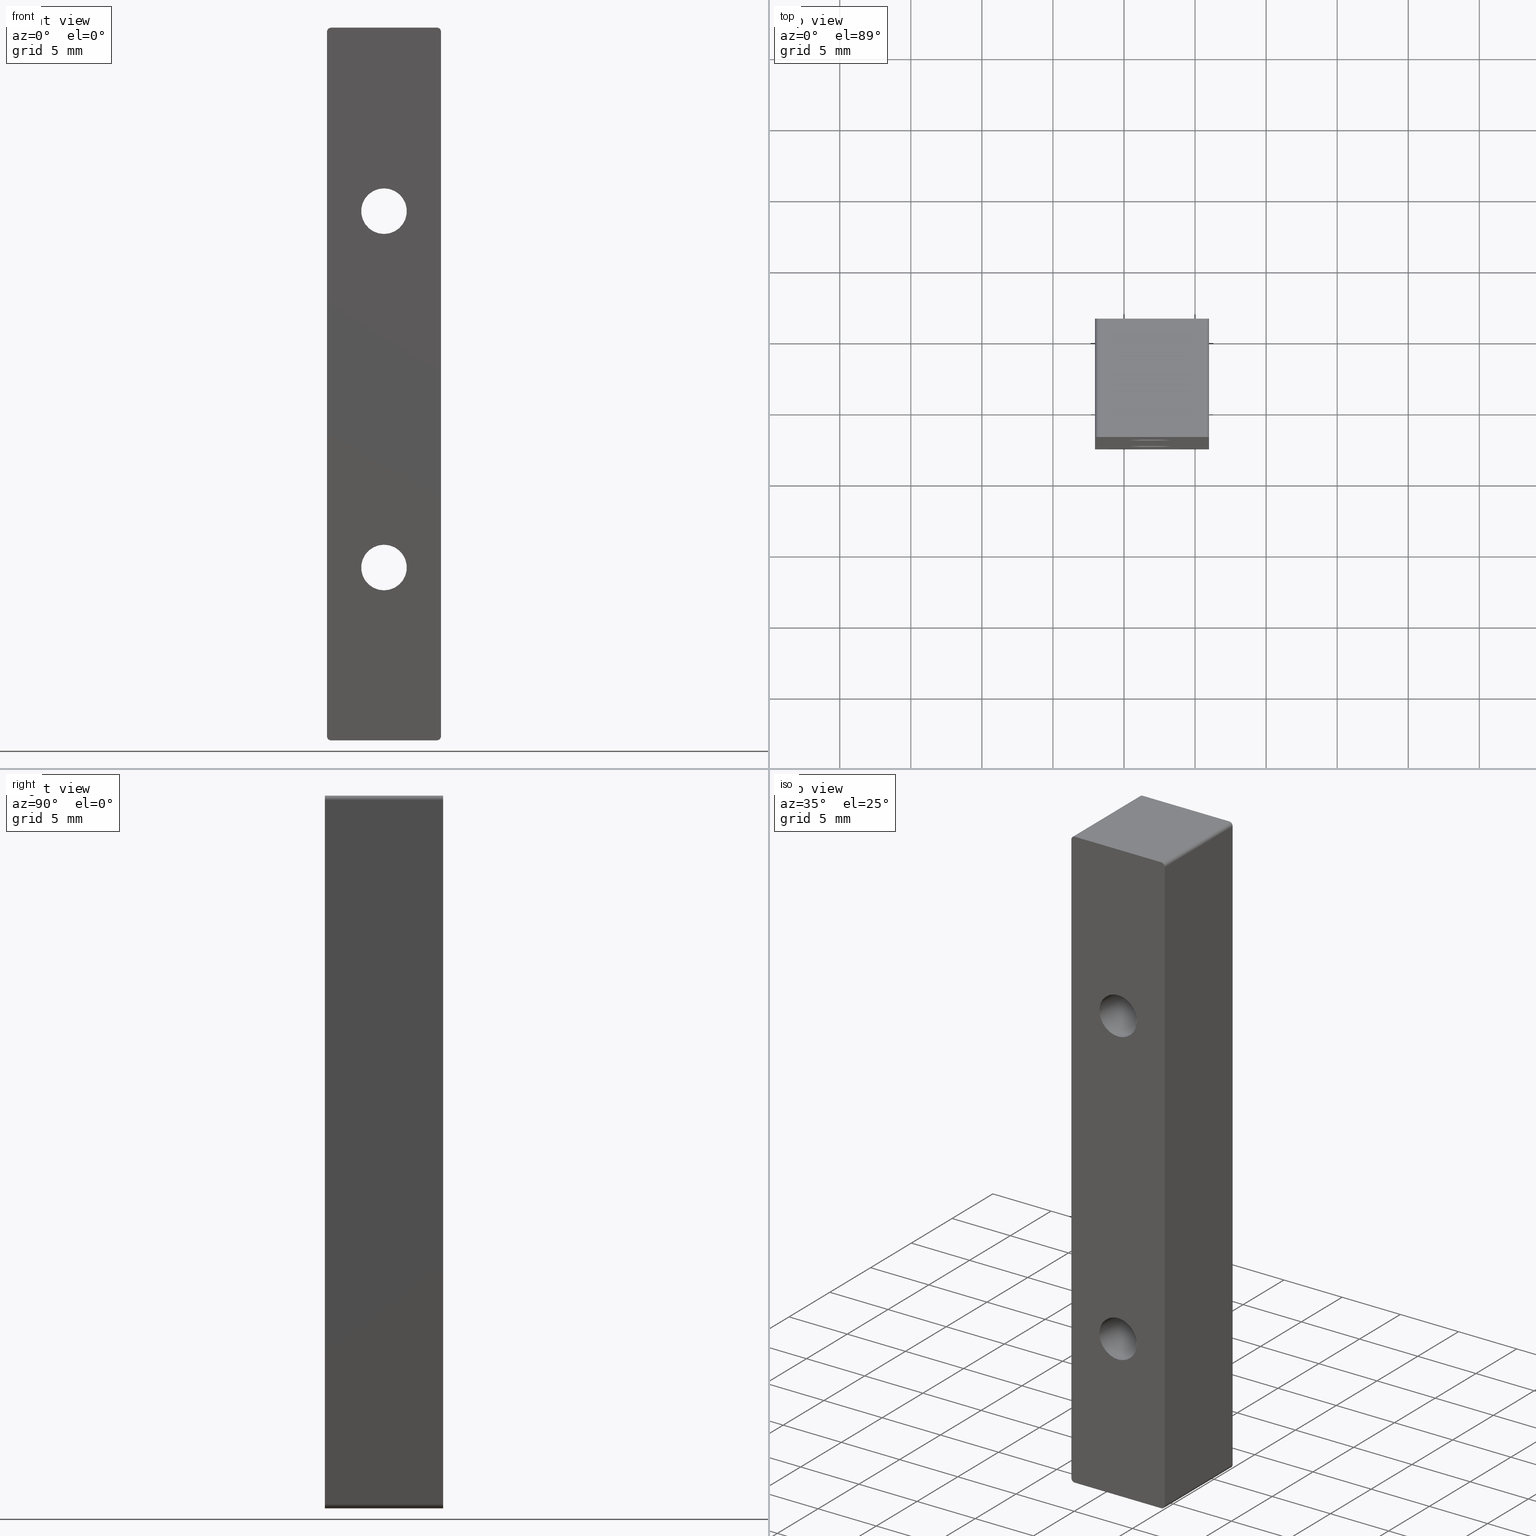
[diagram: canonical four-view strip — front | top / right | iso, engineering-drawing reading convention]
A machine part, canonical four-view strip (front | top / right | iso — engineering-drawing reading convention). The complete STEP part file that produces these views, byte-faithful:
ISO-10303-21;
HEADER;
/* Generated by software containing ST-Developer
 * from STEP Tools, Inc. (www.steptools.com) 
 */

FILE_DESCRIPTION(
/* description */ ('WKZ-0470'),
/* implementation_level */ '2;1');

FILE_NAME(
/* name */ 'O_3_01_02_00_00_WKZ-0470.stp',
/* time_stamp */ '2025-11-14T13:33:39+01:00',
/* author */ ('d.fischer'),
/* organization */ (''),
/* preprocessor_version */ 'ST-DEVELOPER v20',
/* originating_system */ 'Autodesk Inventor 2025',
/* authorisation */ '');

FILE_SCHEMA (('AUTOMOTIVE_DESIGN { 1 0 10303 214 3 1 1 }'));
ENDSEC;

DATA;
#10=MECHANICAL_DESIGN_GEOMETRIC_PRESENTATION_REPRESENTATION('',(#13),#643);
#11=SHAPE_REPRESENTATION_RELATIONSHIP('SRR','None',#650,#12);
#12=ADVANCED_BREP_SHAPE_REPRESENTATION('',(#14),#642);
#13=STYLED_ITEM('',(#659),#14);
#14=MANIFOLD_SOLID_BREP('Volumenk\X\F6rper1',#360);
#15=TOROIDAL_SURFACE('',#401,1.908596833135,0.197628458000001);
#16=TOROIDAL_SURFACE('',#410,1.908596833135,0.197628458000001);
#17=CYLINDRICAL_SURFACE('',#390,0.296442686999985);
#18=CYLINDRICAL_SURFACE('',#393,0.296442686999998);
#19=CYLINDRICAL_SURFACE('',#396,0.296442686999991);
#20=CYLINDRICAL_SURFACE('',#398,2.106225291135);
#21=CYLINDRICAL_SURFACE('',#406,1.60474307896);
#22=CYLINDRICAL_SURFACE('',#407,2.106225291135);
#23=CYLINDRICAL_SURFACE('',#415,1.60474307896);
#24=CYLINDRICAL_SURFACE('',#423,0.296442687000001);
#25=FACE_BOUND('',#55,.T.);
#26=FACE_BOUND('',#56,.T.);
#27=FACE_BOUND('',#65,.T.);
#28=FACE_BOUND('',#70,.T.);
#29=FACE_BOUND('',#73,.T.);
#30=FACE_BOUND('',#74,.T.);
#31=FACE_BOUND('',#76,.T.);
#32=FACE_BOUND('',#82,.T.);
#33=FACE_OUTER_BOUND('',#54,.T.);
#34=FACE_OUTER_BOUND('',#57,.T.);
#35=FACE_OUTER_BOUND('',#58,.T.);
#36=FACE_OUTER_BOUND('',#59,.T.);
#37=FACE_OUTER_BOUND('',#60,.T.);
#38=FACE_OUTER_BOUND('',#61,.T.);
#39=FACE_OUTER_BOUND('',#62,.T.);
#40=FACE_OUTER_BOUND('',#63,.T.);
#41=FACE_OUTER_BOUND('',#64,.T.);
#42=FACE_OUTER_BOUND('',#66,.T.);
#43=FACE_OUTER_BOUND('',#67,.T.);
#44=FACE_OUTER_BOUND('',#68,.T.);
#45=FACE_OUTER_BOUND('',#69,.T.);
#46=FACE_OUTER_BOUND('',#71,.T.);
#47=FACE_OUTER_BOUND('',#72,.T.);
#48=FACE_OUTER_BOUND('',#75,.T.);
#49=FACE_OUTER_BOUND('',#77,.T.);
#50=FACE_OUTER_BOUND('',#78,.T.);
#51=FACE_OUTER_BOUND('',#79,.T.);
#52=FACE_OUTER_BOUND('',#80,.T.);
#53=FACE_OUTER_BOUND('',#81,.T.);
#54=EDGE_LOOP('',(#234,#235,#236,#237,#238,#239,#240,#241,#242,#243));
#55=EDGE_LOOP('',(#244));
#56=EDGE_LOOP('',(#245));
#57=EDGE_LOOP('',(#246,#247,#248,#249));
#58=EDGE_LOOP('',(#250,#251,#252,#253));
#59=EDGE_LOOP('',(#254,#255,#256,#257));
#60=EDGE_LOOP('',(#258,#259,#260,#261));
#61=EDGE_LOOP('',(#262,#263,#264,#265));
#62=EDGE_LOOP('',(#266,#267,#268,#269));
#63=EDGE_LOOP('',(#270,#271,#272,#273));
#64=EDGE_LOOP('',(#274));
#65=EDGE_LOOP('',(#275));
#66=EDGE_LOOP('',(#276,#277,#278,#279));
#67=EDGE_LOOP('',(#280,#281,#282,#283));
#68=EDGE_LOOP('',(#284,#285,#286,#287));
#69=EDGE_LOOP('',(#288));
#70=EDGE_LOOP('',(#289));
#71=EDGE_LOOP('',(#290,#291,#292,#293));
#72=EDGE_LOOP('',(#294,#295,#296,#297,#298,#299,#300,#301));
#73=EDGE_LOOP('',(#302));
#74=EDGE_LOOP('',(#303));
#75=EDGE_LOOP('',(#304));
#76=EDGE_LOOP('',(#305));
#77=EDGE_LOOP('',(#306,#307,#308,#309,#310,#311,#312,#313));
#78=EDGE_LOOP('',(#314,#315,#316,#317));
#79=EDGE_LOOP('',(#318,#319,#320,#321));
#80=EDGE_LOOP('',(#322,#323,#324,#325));
#81=EDGE_LOOP('',(#326));
#82=EDGE_LOOP('',(#327));
#83=LINE('',#545,#108);
#84=LINE('',#549,#109);
#85=LINE('',#553,#110);
#86=LINE('',#555,#111);
#87=LINE('',#557,#112);
#88=LINE('',#560,#113);
#89=LINE('',#567,#114);
#90=LINE('',#570,#115);
#91=LINE('',#573,#116);
#92=LINE('',#574,#117);
#93=LINE('',#577,#118);
#94=LINE('',#581,#119);
#95=LINE('',#582,#120);
#96=LINE('',#585,#121);
#97=LINE('',#591,#122);
#98=LINE('',#601,#123);
#99=LINE('',#606,#124);
#100=LINE('',#616,#125);
#101=LINE('',#619,#126);
#102=LINE('',#622,#127);
#103=LINE('',#629,#128);
#104=LINE('',#631,#129);
#105=LINE('',#633,#130);
#106=LINE('',#634,#131);
#107=LINE('',#637,#132);
#108=VECTOR('',#432,10.);
#109=VECTOR('',#435,10.);
#110=VECTOR('',#438,10.);
#111=VECTOR('',#439,10.);
#112=VECTOR('',#440,10.);
#113=VECTOR('',#443,10.);
#114=VECTOR('',#450,9.8814229);
#115=VECTOR('',#453,9.8814229);
#116=VECTOR('',#456,9.8814229);
#117=VECTOR('',#457,9.8814229);
#118=VECTOR('',#460,9.8814229);
#119=VECTOR('',#465,9.8814229);
#120=VECTOR('',#466,9.8814229);
#121=VECTOR('',#469,9.8814229);
#122=VECTOR('',#476,2.106225291135);
#123=VECTOR('',#491,1.60474307896);
#124=VECTOR('',#496,2.106225291135);
#125=VECTOR('',#511,1.60474307896);
#126=VECTOR('',#514,9.8814229);
#127=VECTOR('',#517,9.8814229);
#128=VECTOR('',#526,9.8814229);
#129=VECTOR('',#527,9.8814229);
#130=VECTOR('',#528,9.8814229);
#131=VECTOR('',#529,9.8814229);
#132=VECTOR('',#534,9.8814229);
#133=CIRCLE('',#384,0.296442686999991);
#134=CIRCLE('',#385,0.296442686999998);
#135=CIRCLE('',#386,0.296442686999985);
#136=CIRCLE('',#387,0.296442687000001);
#137=CIRCLE('',#388,1.60474307896);
#138=CIRCLE('',#389,1.60474307896);
#139=CIRCLE('',#391,0.296442686999985);
#140=CIRCLE('',#394,0.296442686999998);
#141=CIRCLE('',#397,0.296442686999991);
#142=CIRCLE('',#399,2.106225291135);
#143=CIRCLE('',#400,2.106225291135);
#144=CIRCLE('',#402,0.197628458000001);
#145=CIRCLE('',#403,1.908596833135);
#146=CIRCLE('',#405,1.60474307896);
#147=CIRCLE('',#408,2.106225291135);
#148=CIRCLE('',#409,2.106225291135);
#149=CIRCLE('',#411,0.197628458000001);
#150=CIRCLE('',#412,1.908596833135);
#151=CIRCLE('',#414,1.60474307896);
#152=CIRCLE('',#417,0.296442687000001);
#153=CIRCLE('',#418,2.96442687);
#154=CIRCLE('',#419,2.96442687);
#155=VERTEX_POINT('',#541);
#156=VERTEX_POINT('',#542);
#157=VERTEX_POINT('',#544);
#158=VERTEX_POINT('',#546);
#159=VERTEX_POINT('',#548);
#160=VERTEX_POINT('',#550);
#161=VERTEX_POINT('',#552);
#162=VERTEX_POINT('',#554);
#163=VERTEX_POINT('',#556);
#164=VERTEX_POINT('',#558);
#165=VERTEX_POINT('',#561);
#166=VERTEX_POINT('',#563);
#167=VERTEX_POINT('',#566);
#168=VERTEX_POINT('',#568);
#169=VERTEX_POINT('',#572);
#170=VERTEX_POINT('',#576);
#171=VERTEX_POINT('',#580);
#172=VERTEX_POINT('',#584);
#173=VERTEX_POINT('',#588);
#174=VERTEX_POINT('',#590);
#175=VERTEX_POINT('',#594);
#176=VERTEX_POINT('',#598);
#177=VERTEX_POINT('',#603);
#178=VERTEX_POINT('',#605);
#179=VERTEX_POINT('',#609);
#180=VERTEX_POINT('',#613);
#181=VERTEX_POINT('',#618);
#182=VERTEX_POINT('',#620);
#183=VERTEX_POINT('',#623);
#184=VERTEX_POINT('',#625);
#185=VERTEX_POINT('',#630);
#186=VERTEX_POINT('',#632);
#187=EDGE_CURVE('',#155,#156,#133,.T.);
#188=EDGE_CURVE('',#157,#155,#83,.T.);
#189=EDGE_CURVE('',#158,#157,#134,.T.);
#190=EDGE_CURVE('',#159,#158,#84,.T.);
#191=EDGE_CURVE('',#160,#159,#135,.T.);
#192=EDGE_CURVE('',#161,#160,#85,.T.);
#193=EDGE_CURVE('',#162,#161,#86,.T.);
#194=EDGE_CURVE('',#163,#162,#87,.T.);
#195=EDGE_CURVE('',#164,#163,#136,.T.);
#196=EDGE_CURVE('',#156,#164,#88,.T.);
#197=EDGE_CURVE('',#165,#165,#137,.T.);
#198=EDGE_CURVE('',#166,#166,#138,.T.);
#199=EDGE_CURVE('',#159,#167,#89,.T.);
#200=EDGE_CURVE('',#168,#167,#139,.T.);
#201=EDGE_CURVE('',#160,#168,#90,.T.);
#202=EDGE_CURVE('',#158,#169,#91,.T.);
#203=EDGE_CURVE('',#167,#169,#92,.T.);
#204=EDGE_CURVE('',#157,#170,#93,.T.);
#205=EDGE_CURVE('',#169,#170,#140,.T.);
#206=EDGE_CURVE('',#155,#171,#94,.T.);
#207=EDGE_CURVE('',#170,#171,#95,.T.);
#208=EDGE_CURVE('',#156,#172,#96,.T.);
#209=EDGE_CURVE('',#171,#172,#141,.T.);
#210=EDGE_CURVE('',#173,#173,#142,.T.);
#211=EDGE_CURVE('',#173,#174,#97,.T.);
#212=EDGE_CURVE('',#174,#174,#143,.T.);
#213=EDGE_CURVE('',#174,#175,#144,.T.);
#214=EDGE_CURVE('',#175,#175,#145,.T.);
#215=EDGE_CURVE('',#176,#176,#146,.T.);
#216=EDGE_CURVE('',#176,#165,#98,.T.);
#217=EDGE_CURVE('',#177,#177,#147,.T.);
#218=EDGE_CURVE('',#177,#178,#99,.T.);
#219=EDGE_CURVE('',#178,#178,#148,.T.);
#220=EDGE_CURVE('',#178,#179,#149,.T.);
#221=EDGE_CURVE('',#179,#179,#150,.T.);
#222=EDGE_CURVE('',#180,#180,#151,.T.);
#223=EDGE_CURVE('',#180,#166,#100,.T.);
#224=EDGE_CURVE('',#172,#181,#101,.T.);
#225=EDGE_CURVE('',#181,#182,#152,.T.);
#226=EDGE_CURVE('',#182,#168,#102,.T.);
#227=EDGE_CURVE('',#183,#183,#153,.T.);
#228=EDGE_CURVE('',#184,#184,#154,.T.);
#229=EDGE_CURVE('',#163,#182,#103,.T.);
#230=EDGE_CURVE('',#185,#162,#104,.T.);
#231=EDGE_CURVE('',#186,#185,#105,.T.);
#232=EDGE_CURVE('',#161,#186,#106,.T.);
#233=EDGE_CURVE('',#164,#181,#107,.T.);
#234=ORIENTED_EDGE('',*,*,#187,.F.);
#235=ORIENTED_EDGE('',*,*,#188,.F.);
#236=ORIENTED_EDGE('',*,*,#189,.F.);
#237=ORIENTED_EDGE('',*,*,#190,.F.);
#238=ORIENTED_EDGE('',*,*,#191,.F.);
#239=ORIENTED_EDGE('',*,*,#192,.F.);
#240=ORIENTED_EDGE('',*,*,#193,.F.);
#241=ORIENTED_EDGE('',*,*,#194,.F.);
#242=ORIENTED_EDGE('',*,*,#195,.F.);
#243=ORIENTED_EDGE('',*,*,#196,.F.);
#244=ORIENTED_EDGE('',*,*,#197,.F.);
#245=ORIENTED_EDGE('',*,*,#198,.F.);
#246=ORIENTED_EDGE('',*,*,#191,.T.);
#247=ORIENTED_EDGE('',*,*,#199,.T.);
#248=ORIENTED_EDGE('',*,*,#200,.F.);
#249=ORIENTED_EDGE('',*,*,#201,.F.);
#250=ORIENTED_EDGE('',*,*,#190,.T.);
#251=ORIENTED_EDGE('',*,*,#202,.T.);
#252=ORIENTED_EDGE('',*,*,#203,.F.);
#253=ORIENTED_EDGE('',*,*,#199,.F.);
#254=ORIENTED_EDGE('',*,*,#189,.T.);
#255=ORIENTED_EDGE('',*,*,#204,.T.);
#256=ORIENTED_EDGE('',*,*,#205,.F.);
#257=ORIENTED_EDGE('',*,*,#202,.F.);
#258=ORIENTED_EDGE('',*,*,#188,.T.);
#259=ORIENTED_EDGE('',*,*,#206,.T.);
#260=ORIENTED_EDGE('',*,*,#207,.F.);
#261=ORIENTED_EDGE('',*,*,#204,.F.);
#262=ORIENTED_EDGE('',*,*,#187,.T.);
#263=ORIENTED_EDGE('',*,*,#208,.T.);
#264=ORIENTED_EDGE('',*,*,#209,.F.);
#265=ORIENTED_EDGE('',*,*,#206,.F.);
#266=ORIENTED_EDGE('',*,*,#210,.F.);
#267=ORIENTED_EDGE('',*,*,#211,.T.);
#268=ORIENTED_EDGE('',*,*,#212,.T.);
#269=ORIENTED_EDGE('',*,*,#211,.F.);
#270=ORIENTED_EDGE('',*,*,#212,.F.);
#271=ORIENTED_EDGE('',*,*,#213,.T.);
#272=ORIENTED_EDGE('',*,*,#214,.T.);
#273=ORIENTED_EDGE('',*,*,#213,.F.);
#274=ORIENTED_EDGE('',*,*,#214,.F.);
#275=ORIENTED_EDGE('',*,*,#215,.T.);
#276=ORIENTED_EDGE('',*,*,#215,.F.);
#277=ORIENTED_EDGE('',*,*,#216,.T.);
#278=ORIENTED_EDGE('',*,*,#197,.T.);
#279=ORIENTED_EDGE('',*,*,#216,.F.);
#280=ORIENTED_EDGE('',*,*,#217,.F.);
#281=ORIENTED_EDGE('',*,*,#218,.T.);
#282=ORIENTED_EDGE('',*,*,#219,.T.);
#283=ORIENTED_EDGE('',*,*,#218,.F.);
#284=ORIENTED_EDGE('',*,*,#219,.F.);
#285=ORIENTED_EDGE('',*,*,#220,.T.);
#286=ORIENTED_EDGE('',*,*,#221,.T.);
#287=ORIENTED_EDGE('',*,*,#220,.F.);
#288=ORIENTED_EDGE('',*,*,#221,.F.);
#289=ORIENTED_EDGE('',*,*,#222,.T.);
#290=ORIENTED_EDGE('',*,*,#222,.F.);
#291=ORIENTED_EDGE('',*,*,#223,.T.);
#292=ORIENTED_EDGE('',*,*,#198,.T.);
#293=ORIENTED_EDGE('',*,*,#223,.F.);
#294=ORIENTED_EDGE('',*,*,#205,.T.);
#295=ORIENTED_EDGE('',*,*,#207,.T.);
#296=ORIENTED_EDGE('',*,*,#209,.T.);
#297=ORIENTED_EDGE('',*,*,#224,.T.);
#298=ORIENTED_EDGE('',*,*,#225,.T.);
#299=ORIENTED_EDGE('',*,*,#226,.T.);
#300=ORIENTED_EDGE('',*,*,#200,.T.);
#301=ORIENTED_EDGE('',*,*,#203,.T.);
#302=ORIENTED_EDGE('',*,*,#227,.F.);
#303=ORIENTED_EDGE('',*,*,#228,.F.);
#304=ORIENTED_EDGE('',*,*,#228,.T.);
#305=ORIENTED_EDGE('',*,*,#210,.T.);
#306=ORIENTED_EDGE('',*,*,#192,.T.);
#307=ORIENTED_EDGE('',*,*,#201,.T.);
#308=ORIENTED_EDGE('',*,*,#226,.F.);
#309=ORIENTED_EDGE('',*,*,#229,.F.);
#310=ORIENTED_EDGE('',*,*,#194,.T.);
#311=ORIENTED_EDGE('',*,*,#230,.F.);
#312=ORIENTED_EDGE('',*,*,#231,.F.);
#313=ORIENTED_EDGE('',*,*,#232,.F.);
#314=ORIENTED_EDGE('',*,*,#193,.T.);
#315=ORIENTED_EDGE('',*,*,#232,.T.);
#316=ORIENTED_EDGE('',*,*,#231,.T.);
#317=ORIENTED_EDGE('',*,*,#230,.T.);
#318=ORIENTED_EDGE('',*,*,#195,.T.);
#319=ORIENTED_EDGE('',*,*,#229,.T.);
#320=ORIENTED_EDGE('',*,*,#225,.F.);
#321=ORIENTED_EDGE('',*,*,#233,.F.);
#322=ORIENTED_EDGE('',*,*,#196,.T.);
#323=ORIENTED_EDGE('',*,*,#233,.T.);
#324=ORIENTED_EDGE('',*,*,#224,.F.);
#325=ORIENTED_EDGE('',*,*,#208,.F.);
#326=ORIENTED_EDGE('',*,*,#227,.T.);
#327=ORIENTED_EDGE('',*,*,#217,.T.);
#328=PLANE('',#383);
#329=PLANE('',#392);
#330=PLANE('',#395);
#331=PLANE('',#404);
#332=PLANE('',#413);
#333=PLANE('',#416);
#334=PLANE('',#420);
#335=PLANE('',#421);
#336=PLANE('',#422);
#337=PLANE('',#424);
#338=PLANE('',#425);
#339=ADVANCED_FACE('',(#33,#25,#26),#328,.T.);
#340=ADVANCED_FACE('',(#34),#17,.T.);
#341=ADVANCED_FACE('',(#35),#329,.T.);
#342=ADVANCED_FACE('',(#36),#18,.T.);
#343=ADVANCED_FACE('',(#37),#330,.T.);
#344=ADVANCED_FACE('',(#38),#19,.T.);
#345=ADVANCED_FACE('',(#39),#20,.F.);
#346=ADVANCED_FACE('',(#40),#15,.F.);
#347=ADVANCED_FACE('',(#41,#27),#331,.F.);
#348=ADVANCED_FACE('',(#42),#21,.F.);
#349=ADVANCED_FACE('',(#43),#22,.F.);
#350=ADVANCED_FACE('',(#44),#16,.F.);
#351=ADVANCED_FACE('',(#45,#28),#332,.F.);
#352=ADVANCED_FACE('',(#46),#23,.F.);
#353=ADVANCED_FACE('',(#47,#29,#30),#333,.F.);
#354=ADVANCED_FACE('',(#48,#31),#334,.F.);
#355=ADVANCED_FACE('',(#49),#335,.T.);
#356=ADVANCED_FACE('',(#50),#336,.T.);
#357=ADVANCED_FACE('',(#51),#24,.T.);
#358=ADVANCED_FACE('',(#52),#337,.T.);
#359=ADVANCED_FACE('',(#53,#32),#338,.F.);
#360=CLOSED_SHELL('',(#339,#340,#341,#342,#343,#344,#345,#346,#347,#348,
#349,#350,#351,#352,#353,#354,#355,#356,#357,#358,#359));
#361=DERIVED_UNIT_ELEMENT(#364,1.);
#362=DERIVED_UNIT_ELEMENT(#645,-3.);
#363=DIMENSIONAL_EXPONENTS(0.,1.,0.,0.,0.,0.,0.);
#364=(
CONVERSION_BASED_UNIT('gram',#366)
MASS_UNIT()
NAMED_UNIT(#363)
);
#365=(
MASS_UNIT()
NAMED_UNIT(*)
SI_UNIT(.KILO.,.GRAM.)
);
#366=MASS_MEASURE_WITH_UNIT(MASS_MEASURE(0.001),#365);
#367=DERIVED_UNIT((#361,#362));
#368=MEASURE_REPRESENTATION_ITEM('density measure',
POSITIVE_RATIO_MEASURE(1.),#367);
#369=PROPERTY_DEFINITION_REPRESENTATION(#374,#371);
#370=PROPERTY_DEFINITION_REPRESENTATION(#375,#372);
#371=REPRESENTATION('material name',(#373),#642);
#372=REPRESENTATION('density',(#368),#642);
#373=DESCRIPTIVE_REPRESENTATION_ITEM('Generisch','Generisch');
#374=PROPERTY_DEFINITION('material property','material name',#652);
#375=PROPERTY_DEFINITION('material property','density of part',#652);
#376=DATE_TIME_ROLE('creation_date');
#377=APPLIED_DATE_AND_TIME_ASSIGNMENT(#378,#376,(#652));
#378=DATE_AND_TIME(#379,#380);
#379=CALENDAR_DATE(2025,29,7);
#380=LOCAL_TIME(0,0,0.,#381);
#381=COORDINATED_UNIVERSAL_TIME_OFFSET(0,0,.BEHIND.);
#382=AXIS2_PLACEMENT_3D('',#539,#426,#427);
#383=AXIS2_PLACEMENT_3D('',#540,#428,#429);
#384=AXIS2_PLACEMENT_3D('',#543,#430,#431);
#385=AXIS2_PLACEMENT_3D('',#547,#433,#434);
#386=AXIS2_PLACEMENT_3D('',#551,#436,#437);
#387=AXIS2_PLACEMENT_3D('',#559,#441,#442);
#388=AXIS2_PLACEMENT_3D('',#562,#444,#445);
#389=AXIS2_PLACEMENT_3D('',#564,#446,#447);
#390=AXIS2_PLACEMENT_3D('',#565,#448,#449);
#391=AXIS2_PLACEMENT_3D('',#569,#451,#452);
#392=AXIS2_PLACEMENT_3D('',#571,#454,#455);
#393=AXIS2_PLACEMENT_3D('',#575,#458,#459);
#394=AXIS2_PLACEMENT_3D('',#578,#461,#462);
#395=AXIS2_PLACEMENT_3D('',#579,#463,#464);
#396=AXIS2_PLACEMENT_3D('',#583,#467,#468);
#397=AXIS2_PLACEMENT_3D('',#586,#470,#471);
#398=AXIS2_PLACEMENT_3D('',#587,#472,#473);
#399=AXIS2_PLACEMENT_3D('',#589,#474,#475);
#400=AXIS2_PLACEMENT_3D('',#592,#477,#478);
#401=AXIS2_PLACEMENT_3D('',#593,#479,#480);
#402=AXIS2_PLACEMENT_3D('',#595,#481,#482);
#403=AXIS2_PLACEMENT_3D('',#596,#483,#484);
#404=AXIS2_PLACEMENT_3D('',#597,#485,#486);
#405=AXIS2_PLACEMENT_3D('',#599,#487,#488);
#406=AXIS2_PLACEMENT_3D('',#600,#489,#490);
#407=AXIS2_PLACEMENT_3D('',#602,#492,#493);
#408=AXIS2_PLACEMENT_3D('',#604,#494,#495);
#409=AXIS2_PLACEMENT_3D('',#607,#497,#498);
#410=AXIS2_PLACEMENT_3D('',#608,#499,#500);
#411=AXIS2_PLACEMENT_3D('',#610,#501,#502);
#412=AXIS2_PLACEMENT_3D('',#611,#503,#504);
#413=AXIS2_PLACEMENT_3D('',#612,#505,#506);
#414=AXIS2_PLACEMENT_3D('',#614,#507,#508);
#415=AXIS2_PLACEMENT_3D('',#615,#509,#510);
#416=AXIS2_PLACEMENT_3D('',#617,#512,#513);
#417=AXIS2_PLACEMENT_3D('',#621,#515,#516);
#418=AXIS2_PLACEMENT_3D('',#624,#518,#519);
#419=AXIS2_PLACEMENT_3D('',#626,#520,#521);
#420=AXIS2_PLACEMENT_3D('',#627,#522,#523);
#421=AXIS2_PLACEMENT_3D('',#628,#524,#525);
#422=AXIS2_PLACEMENT_3D('',#635,#530,#531);
#423=AXIS2_PLACEMENT_3D('',#636,#532,#533);
#424=AXIS2_PLACEMENT_3D('',#638,#535,#536);
#425=AXIS2_PLACEMENT_3D('',#639,#537,#538);
#426=DIRECTION('axis',(0.,0.,1.));
#427=DIRECTION('refdir',(1.,0.,0.));
#428=DIRECTION('center_axis',(0.,-1.,0.));
#429=DIRECTION('ref_axis',(0.,0.,-1.));
#430=DIRECTION('center_axis',(0.,1.,0.));
#431=DIRECTION('ref_axis',(0.,0.,1.));
#432=DIRECTION('',(2.65656556241314E-16,0.,1.));
#433=DIRECTION('center_axis',(0.,1.,0.));
#434=DIRECTION('ref_axis',(-1.,0.,0.));
#435=DIRECTION('',(-1.,0.,1.18108832406932E-15));
#436=DIRECTION('center_axis',(0.,1.,0.));
#437=DIRECTION('ref_axis',(0.,0.,-1.));
#438=DIRECTION('',(-7.51072669634541E-16,0.,-1.));
#439=DIRECTION('',(-7.51072669634541E-16,0.,-1.));
#440=DIRECTION('',(-7.51072669634541E-16,0.,-1.));
#441=DIRECTION('center_axis',(0.,1.,0.));
#442=DIRECTION('ref_axis',(1.,0.,0.));
#443=DIRECTION('',(1.,0.,0.));
#444=DIRECTION('center_axis',(0.,-1.,0.));
#445=DIRECTION('ref_axis',(0.,0.,-1.));
#446=DIRECTION('center_axis',(0.,-1.,0.));
#447=DIRECTION('ref_axis',(0.,0.,-1.));
#448=DIRECTION('center_axis',(0.,1.,0.));
#449=DIRECTION('ref_axis',(0.,0.,-1.));
#450=DIRECTION('',(0.,1.,0.));
#451=DIRECTION('center_axis',(0.,1.,0.));
#452=DIRECTION('ref_axis',(0.,0.,-1.));
#453=DIRECTION('',(0.,1.,0.));
#454=DIRECTION('center_axis',(-1.18108832406932E-15,0.,-1.));
#455=DIRECTION('ref_axis',(-1.,0.,1.18108832406932E-15));
#456=DIRECTION('',(0.,1.,0.));
#457=DIRECTION('',(-1.,0.,1.18108832406932E-15));
#458=DIRECTION('center_axis',(0.,1.,0.));
#459=DIRECTION('ref_axis',(-1.,0.,0.));
#460=DIRECTION('',(0.,1.,0.));
#461=DIRECTION('center_axis',(0.,1.,0.));
#462=DIRECTION('ref_axis',(-1.,0.,0.));
#463=DIRECTION('center_axis',(-1.,0.,2.65656556241314E-16));
#464=DIRECTION('ref_axis',(2.65656556241314E-16,0.,1.));
#465=DIRECTION('',(0.,1.,0.));
#466=DIRECTION('',(2.65656556241314E-16,0.,1.));
#467=DIRECTION('center_axis',(0.,1.,0.));
#468=DIRECTION('ref_axis',(0.,0.,1.));
#469=DIRECTION('',(0.,1.,0.));
#470=DIRECTION('center_axis',(0.,1.,0.));
#471=DIRECTION('ref_axis',(0.,0.,1.));
#472=DIRECTION('center_axis',(0.,-1.,0.));
#473=DIRECTION('ref_axis',(0.,0.,-1.));
#474=DIRECTION('center_axis',(0.,-1.,0.));
#475=DIRECTION('ref_axis',(0.,0.,-1.));
#476=DIRECTION('',(0.,-1.,0.));
#477=DIRECTION('center_axis',(0.,-1.,0.));
#478=DIRECTION('ref_axis',(1.,0.,0.));
#479=DIRECTION('center_axis',(0.,-1.,0.));
#480=DIRECTION('ref_axis',(0.,0.,-1.));
#481=DIRECTION('center_axis',(1.,0.,0.));
#482=DIRECTION('ref_axis',(0.,0.,1.));
#483=DIRECTION('center_axis',(0.,-1.,0.));
#484=DIRECTION('ref_axis',(1.,0.,0.));
#485=DIRECTION('center_axis',(0.,-1.,0.));
#486=DIRECTION('ref_axis',(0.,0.,-1.));
#487=DIRECTION('center_axis',(0.,-1.,0.));
#488=DIRECTION('ref_axis',(1.,0.,0.));
#489=DIRECTION('center_axis',(0.,-1.,0.));
#490=DIRECTION('ref_axis',(0.,0.,-1.));
#491=DIRECTION('',(0.,-1.,0.));
#492=DIRECTION('center_axis',(0.,-1.,0.));
#493=DIRECTION('ref_axis',(0.,0.,-1.));
#494=DIRECTION('center_axis',(0.,-1.,0.));
#495=DIRECTION('ref_axis',(0.,0.,-1.));
#496=DIRECTION('',(0.,-1.,0.));
#497=DIRECTION('center_axis',(0.,-1.,0.));
#498=DIRECTION('ref_axis',(1.,0.,0.));
#499=DIRECTION('center_axis',(0.,-1.,0.));
#500=DIRECTION('ref_axis',(0.,0.,-1.));
#501=DIRECTION('center_axis',(1.,0.,0.));
#502=DIRECTION('ref_axis',(0.,0.,1.));
#503=DIRECTION('center_axis',(0.,-1.,0.));
#504=DIRECTION('ref_axis',(1.,0.,0.));
#505=DIRECTION('center_axis',(0.,-1.,0.));
#506=DIRECTION('ref_axis',(0.,0.,-1.));
#507=DIRECTION('center_axis',(0.,-1.,0.));
#508=DIRECTION('ref_axis',(1.,0.,0.));
#509=DIRECTION('center_axis',(0.,-1.,0.));
#510=DIRECTION('ref_axis',(0.,0.,-1.));
#511=DIRECTION('',(0.,-1.,0.));
#512=DIRECTION('center_axis',(0.,-1.,0.));
#513=DIRECTION('ref_axis',(1.,0.,0.));
#514=DIRECTION('',(1.,0.,0.));
#515=DIRECTION('center_axis',(0.,1.,0.));
#516=DIRECTION('ref_axis',(1.,0.,0.));
#517=DIRECTION('',(-7.51072669634541E-16,0.,-1.));
#518=DIRECTION('center_axis',(0.,1.,0.));
#519=DIRECTION('ref_axis',(-1.,1.22464679914735E-16,9.76020241428709E-17));
#520=DIRECTION('center_axis',(0.,1.,0.));
#521=DIRECTION('ref_axis',(-1.,1.22464679914735E-16,9.76020241428709E-17));
#522=DIRECTION('center_axis',(0.,-1.,0.));
#523=DIRECTION('ref_axis',(1.,0.,0.));
#524=DIRECTION('center_axis',(1.,0.,-7.51072669634541E-16));
#525=DIRECTION('ref_axis',(-7.51072669634541E-16,0.,-1.));
#526=DIRECTION('',(0.,1.,0.));
#527=DIRECTION('',(0.,-1.,0.));
#528=DIRECTION('',(7.51072669634541E-16,0.,1.));
#529=DIRECTION('',(0.,1.,0.));
#530=DIRECTION('center_axis',(1.,0.,-7.51072669634541E-16));
#531=DIRECTION('ref_axis',(-7.51072669634541E-16,0.,-1.));
#532=DIRECTION('center_axis',(0.,1.,0.));
#533=DIRECTION('ref_axis',(1.,0.,0.));
#534=DIRECTION('',(0.,1.,0.));
#535=DIRECTION('center_axis',(0.,0.,1.));
#536=DIRECTION('ref_axis',(1.,0.,0.));
#537=DIRECTION('center_axis',(0.,-1.,0.));
#538=DIRECTION('ref_axis',(1.,0.,0.));
#539=CARTESIAN_POINT('',(0.,0.,0.));
#540=CARTESIAN_POINT('Origin',(-23.0285287518975,2.56297272763272,-34.249469769873));
#541=CARTESIAN_POINT('',(-27.0403864492975,2.56297272763272,-9.47180184812295));
#542=CARTESIAN_POINT('',(-26.7439437622975,2.56297272763272,-9.17535916112294));
#543=CARTESIAN_POINT('Origin',(-26.7439437622975,2.56297272763272,-9.47180184812295));
#544=CARTESIAN_POINT('',(-27.0403864492975,2.56297272763272,-59.027137691623));
#545=CARTESIAN_POINT('',(-27.0403864492975,2.56297272763272,-46.638303730748));
#546=CARTESIAN_POINT('',(-26.7439437622975,2.56297272763272,-59.3235803786229));
#547=CARTESIAN_POINT('Origin',(-26.7439437622975,2.56297272763272,-59.027137691623));
#548=CARTESIAN_POINT('',(-19.3131137414975,2.56297272763272,-59.323580378623));
#549=CARTESIAN_POINT('',(-21.1708212466975,2.56297272763272,-59.323580378623));
#550=CARTESIAN_POINT('',(-19.0166710544975,2.56297272763272,-59.027137691623));
#551=CARTESIAN_POINT('Origin',(-19.3131137414975,2.56297272763272,-59.027137691623));
#552=CARTESIAN_POINT('',(-19.0166710544975,2.56297272763272,-38.5779626271556));
#553=CARTESIAN_POINT('',(-19.0166710544975,2.56297272763272,-21.860635808998));
#554=CARTESIAN_POINT('',(-19.0166710544975,2.56297272763272,-30.6728243071556));
#555=CARTESIAN_POINT('',(-19.0166710544975,2.56297272763272,-21.860635808998));
#556=CARTESIAN_POINT('',(-19.0166710544975,2.56297272763272,-9.47180184812295));
#557=CARTESIAN_POINT('',(-19.0166710544975,2.56297272763272,-21.860635808998));
#558=CARTESIAN_POINT('',(-19.3131137414975,2.56297272763272,-9.17535916112295));
#559=CARTESIAN_POINT('Origin',(-19.3131137414975,2.56297272763272,-9.47180184812295));
#560=CARTESIAN_POINT('',(-24.8862362570975,2.56297272763272,-9.17535916112295));
#561=CARTESIAN_POINT('',(-23.028614677314,2.56297272763272,-45.5577056925706));
#562=CARTESIAN_POINT('Origin',(-23.028614677314,2.56297272763272,-47.1624487715306));
#563=CARTESIAN_POINT('',(-23.028614677314,2.56297272763272,-20.4835950838206));
#564=CARTESIAN_POINT('Origin',(-23.028614677314,2.56297272763272,-22.0883381627806));
#565=CARTESIAN_POINT('Origin',(-19.3131137414975,1.86297272763272,-59.027137691623));
#566=CARTESIAN_POINT('',(-19.3131137414975,10.8896525467827,-59.323580378623));
#567=CARTESIAN_POINT('',(-19.3131137414975,1.86297272763272,-59.323580378623));
#568=CARTESIAN_POINT('',(-19.0166710544975,10.8896525467827,-59.027137691623));
#569=CARTESIAN_POINT('Origin',(-19.3131137414975,10.8896525467827,-59.027137691623));
#570=CARTESIAN_POINT('',(-19.0166710544975,1.86297272763272,-59.027137691623));
#571=CARTESIAN_POINT('Origin',(-19.3131137414975,1.86297272763272,-59.323580378623));
#572=CARTESIAN_POINT('',(-26.7439437622975,10.8896525467827,-59.3235803786229));
#573=CARTESIAN_POINT('',(-26.7439437622975,1.86297272763272,-59.3235803786229));
#574=CARTESIAN_POINT('',(-26.7439437622975,10.8896525467827,-59.3235803786229));
#575=CARTESIAN_POINT('Origin',(-26.7439437622975,1.86297272763272,-59.027137691623));
#576=CARTESIAN_POINT('',(-27.0403864492975,10.8896525467827,-59.027137691623));
#577=CARTESIAN_POINT('',(-27.0403864492975,1.86297272763272,-59.027137691623));
#578=CARTESIAN_POINT('Origin',(-26.7439437622975,10.8896525467827,-59.027137691623));
#579=CARTESIAN_POINT('Origin',(-27.0403864492975,1.86297272763272,-59.027137691623));
#580=CARTESIAN_POINT('',(-27.0403864492975,10.8896525467827,-9.47180184812295));
#581=CARTESIAN_POINT('',(-27.0403864492975,1.86297272763272,-9.47180184812295));
#582=CARTESIAN_POINT('',(-27.0403864492975,10.8896525467827,-9.47180184812295));
#583=CARTESIAN_POINT('Origin',(-26.7439437622975,1.86297272763272,-9.47180184812295));
#584=CARTESIAN_POINT('',(-26.7439437622975,10.8896525467827,-9.17535916112296));
#585=CARTESIAN_POINT('',(-26.7439437622975,1.86297272763272,-9.17535916112295));
#586=CARTESIAN_POINT('Origin',(-26.7439437622975,10.8896525467827,-9.47180184812295));
#587=CARTESIAN_POINT('Origin',(-23.028614677314,10.2364329423428,-47.1624487715306));
#588=CARTESIAN_POINT('',(-23.028614677314,10.8896525467827,-45.0562234803956));
#589=CARTESIAN_POINT('Origin',(-23.028614677314,10.8896525467827,-47.1624487715306));
#590=CARTESIAN_POINT('',(-23.028614677314,9.58302385308033,-45.0562234803956));
#591=CARTESIAN_POINT('',(-23.028614677314,10.2364329423428,-45.0562234803956));
#592=CARTESIAN_POINT('Origin',(-23.028614677314,9.58302385308033,-47.1624487715306));
#593=CARTESIAN_POINT('Origin',(-23.028614677314,9.58302385308033,-47.1624487715306));
#594=CARTESIAN_POINT('',(-23.028614677314,9.38539539508032,-45.2538519383956));
#595=CARTESIAN_POINT('Origin',(-23.028614677314,9.58302385308033,-45.2538519383956));
#596=CARTESIAN_POINT('Origin',(-23.028614677314,9.38539539508032,-47.1624487715306));
#597=CARTESIAN_POINT('Origin',(-23.028614677314,9.38539539508032,-48.7671918504906));
#598=CARTESIAN_POINT('',(-23.028614677314,9.38539539508032,-45.5577056925706));
#599=CARTESIAN_POINT('Origin',(-23.028614677314,9.38539539508032,-47.1624487715306));
#600=CARTESIAN_POINT('Origin',(-23.028614677314,5.71076471845917,-47.1624487715306));
#601=CARTESIAN_POINT('',(-23.028614677314,5.71076471845917,-45.5577056925706));
#602=CARTESIAN_POINT('Origin',(-23.028614677314,10.2364329423428,-22.0883381627806));
#603=CARTESIAN_POINT('',(-23.028614677314,10.8896525467827,-19.9821128716456));
#604=CARTESIAN_POINT('Origin',(-23.028614677314,10.8896525467827,-22.0883381627806));
#605=CARTESIAN_POINT('',(-23.028614677314,9.58302385308033,-19.9821128716456));
#606=CARTESIAN_POINT('',(-23.028614677314,10.2364329423428,-19.9821128716456));
#607=CARTESIAN_POINT('Origin',(-23.028614677314,9.58302385308033,-22.0883381627806));
#608=CARTESIAN_POINT('Origin',(-23.028614677314,9.58302385308033,-22.0883381627806));
#609=CARTESIAN_POINT('',(-23.028614677314,9.38539539508032,-20.1797413296456));
#610=CARTESIAN_POINT('Origin',(-23.028614677314,9.58302385308033,-20.1797413296456));
#611=CARTESIAN_POINT('Origin',(-23.028614677314,9.38539539508032,-22.0883381627806));
#612=CARTESIAN_POINT('Origin',(-23.028614677314,9.38539539508032,-23.6930812417406));
#613=CARTESIAN_POINT('',(-23.028614677314,9.38539539508032,-20.4835950838206));
#614=CARTESIAN_POINT('Origin',(-23.028614677314,9.38539539508032,-22.0883381627806));
#615=CARTESIAN_POINT('Origin',(-23.028614677314,5.71076471845917,-22.0883381627806));
#616=CARTESIAN_POINT('',(-23.028614677314,5.71076471845917,-20.4835950838206));
#617=CARTESIAN_POINT('Origin',(-23.0285287518975,10.8896525467827,-34.249469769873));
#618=CARTESIAN_POINT('',(-19.3131137414975,10.8896525467827,-9.17535916112296));
#619=CARTESIAN_POINT('',(-19.3131137414975,10.8896525467827,-9.17535916112295));
#620=CARTESIAN_POINT('',(-19.0166710544975,10.8896525467827,-9.47180184812295));
#621=CARTESIAN_POINT('Origin',(-19.3131137414975,10.8896525467827,-9.47180184812295));
#622=CARTESIAN_POINT('',(-19.0166710544975,10.8896525467827,-59.027137691623));
#623=CARTESIAN_POINT('',(-20.064187807314,10.8896525467827,-22.0883381627806));
#624=CARTESIAN_POINT('Origin',(-23.028614677314,10.8896525467827,-22.0883381627806));
#625=CARTESIAN_POINT('',(-20.064187807314,10.8896525467827,-47.1624487715306));
#626=CARTESIAN_POINT('Origin',(-23.028614677314,10.8896525467827,-47.1624487715306));
#627=CARTESIAN_POINT('Origin',(-23.0285287518975,10.8896525467827,-34.249469769873));
#628=CARTESIAN_POINT('Origin',(-19.0166710544975,1.86297272763272,-9.47180184812296));
#629=CARTESIAN_POINT('',(-19.0166710544975,1.86297272763272,-9.47180184812295));
#630=CARTESIAN_POINT('',(-19.0166710544975,5.81554188763272,-30.6728243071556));
#631=CARTESIAN_POINT('',(-19.0166710544975,1.86297272763272,-30.6728243071556));
#632=CARTESIAN_POINT('',(-19.0166710544975,5.81554188763272,-38.5779626271556));
#633=CARTESIAN_POINT('',(-19.0166710544975,5.81554188763272,-22.0485976576393));
#634=CARTESIAN_POINT('',(-19.0166710544975,1.86297272763272,-38.5779626271556));
#635=CARTESIAN_POINT('Origin',(-19.0166710544975,1.86297272763272,-9.47180184812296));
#636=CARTESIAN_POINT('Origin',(-19.3131137414975,1.86297272763272,-9.47180184812295));
#637=CARTESIAN_POINT('',(-19.3131137414975,1.86297272763272,-9.17535916112295));
#638=CARTESIAN_POINT('Origin',(-26.7439437622975,1.86297272763272,-9.17535916112295));
#639=CARTESIAN_POINT('Origin',(-23.0285287518975,10.8896525467827,-34.249469769873));
#640=UNCERTAINTY_MEASURE_WITH_UNIT(LENGTH_MEASURE(0.01),#644,
'DISTANCE_ACCURACY_VALUE',
'Maximum model space distance between geometric entities at asserted c
onnectivities');
#641=UNCERTAINTY_MEASURE_WITH_UNIT(LENGTH_MEASURE(0.01),#644,
'DISTANCE_ACCURACY_VALUE',
'Maximum model space distance between geometric entities at asserted c
onnectivities');
#642=(
GEOMETRIC_REPRESENTATION_CONTEXT(3)
GLOBAL_UNCERTAINTY_ASSIGNED_CONTEXT((#640))
GLOBAL_UNIT_ASSIGNED_CONTEXT((#644,#646,#647))
REPRESENTATION_CONTEXT('','3D')
);
#643=(
GEOMETRIC_REPRESENTATION_CONTEXT(3)
GLOBAL_UNCERTAINTY_ASSIGNED_CONTEXT((#641))
GLOBAL_UNIT_ASSIGNED_CONTEXT((#644,#646,#647))
REPRESENTATION_CONTEXT('','3D')
);
#644=(
LENGTH_UNIT()
NAMED_UNIT(*)
SI_UNIT(.MILLI.,.METRE.)
);
#645=(
LENGTH_UNIT()
NAMED_UNIT(*)
SI_UNIT(.CENTI.,.METRE.)
);
#646=(
NAMED_UNIT(*)
PLANE_ANGLE_UNIT()
SI_UNIT($,.RADIAN.)
);
#647=(
NAMED_UNIT(*)
SI_UNIT($,.STERADIAN.)
SOLID_ANGLE_UNIT()
);
#648=SHAPE_DEFINITION_REPRESENTATION(#649,#650);
#649=PRODUCT_DEFINITION_SHAPE('',$,#652);
#650=SHAPE_REPRESENTATION('',(#382),#642);
#651=PRODUCT_DEFINITION_CONTEXT('part definition',#656,'design');
#652=PRODUCT_DEFINITION('O_3_01_02_00_00_WKZ-0470',
'O_3_01_02_00_00_WKZ-0470',#653,#651);
#653=PRODUCT_DEFINITION_FORMATION('',$,#658);
#654=PRODUCT_RELATED_PRODUCT_CATEGORY('O_3_01_02_00_00_WKZ-0470',
'O_3_01_02_00_00_WKZ-0470',(#658));
#655=APPLICATION_PROTOCOL_DEFINITION('international standard',
'automotive_design',2009,#656);
#656=APPLICATION_CONTEXT(
'Core Data for Automotive Mechanical Design Process');
#657=PRODUCT_CONTEXT('part definition',#656,'mechanical');
#658=PRODUCT('O_3_01_02_00_00_WKZ-0470','O_3_01_02_00_00_WKZ-0470',
'WKZ-0470',(#657));
#659=PRESENTATION_STYLE_ASSIGNMENT((#660));
#660=SURFACE_STYLE_USAGE(.BOTH.,#663);
#661=SURFACE_STYLE_RENDERING_WITH_PROPERTIES($,#667,(#662));
#662=SURFACE_STYLE_TRANSPARENT(0.);
#663=SURFACE_SIDE_STYLE('',(#664,#661));
#664=SURFACE_STYLE_FILL_AREA(#665);
#665=FILL_AREA_STYLE('',(#666));
#666=FILL_AREA_STYLE_COLOUR('',#667);
#667=COLOUR_RGB('',0.749019607843137,0.749019607843137,0.749019607843137);
ENDSEC;
END-ISO-10303-21;
